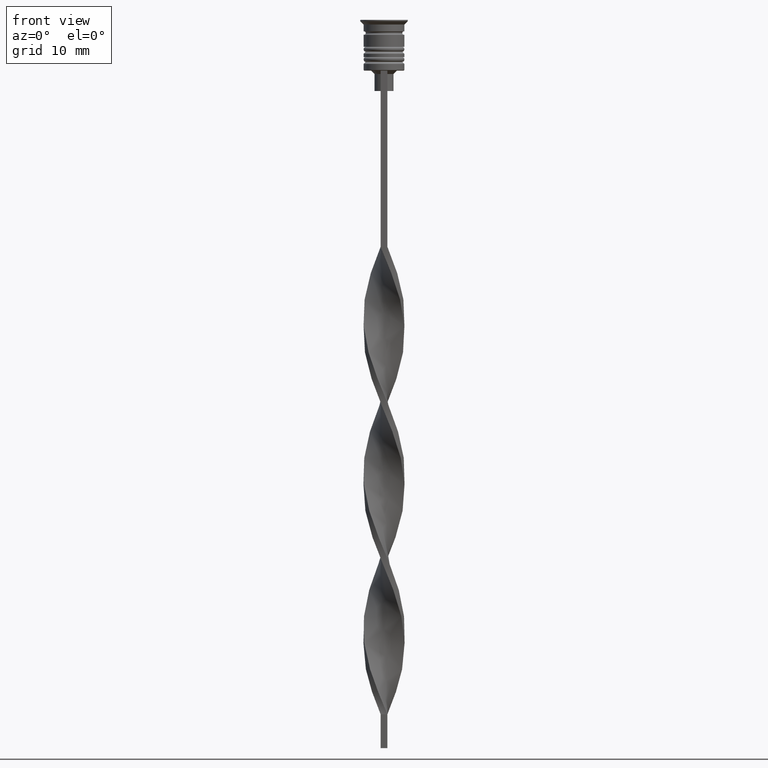
[diagram: clean part render]
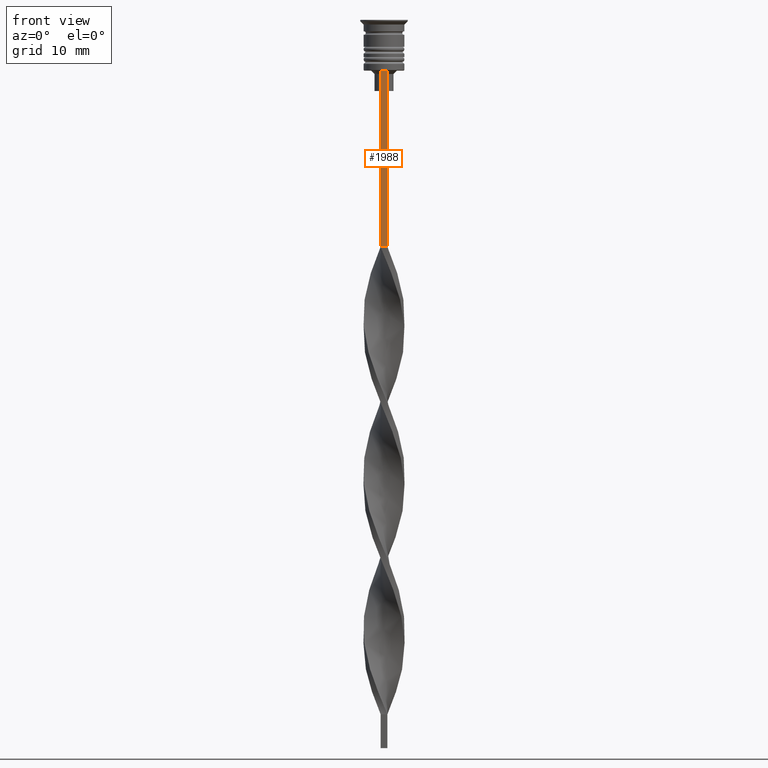
[diagram: same view with one face highlighted and labeled with its STEP entity id]
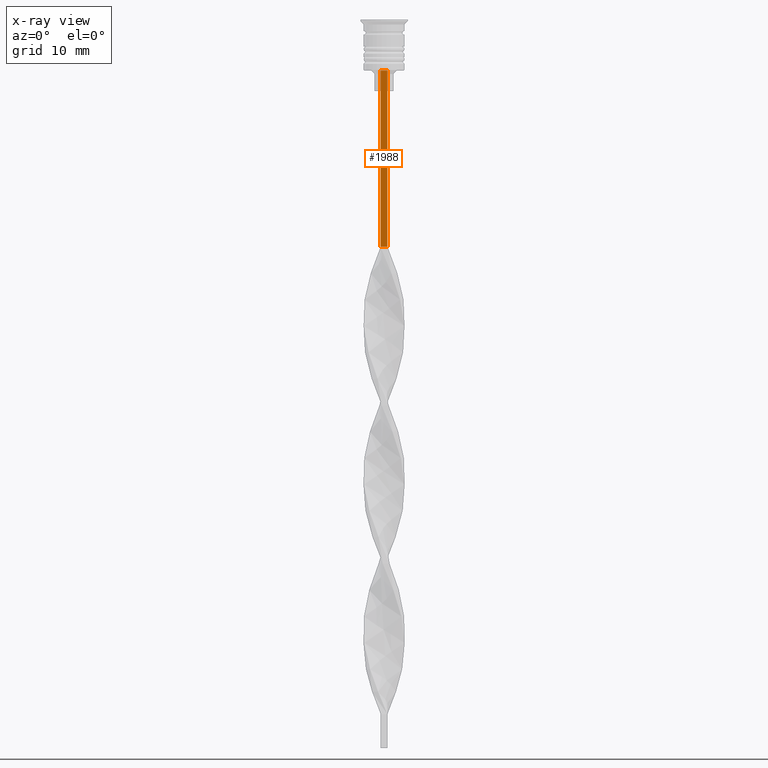
[diagram: x-ray of the same camera — body ghosted, the highlighted face saturated]
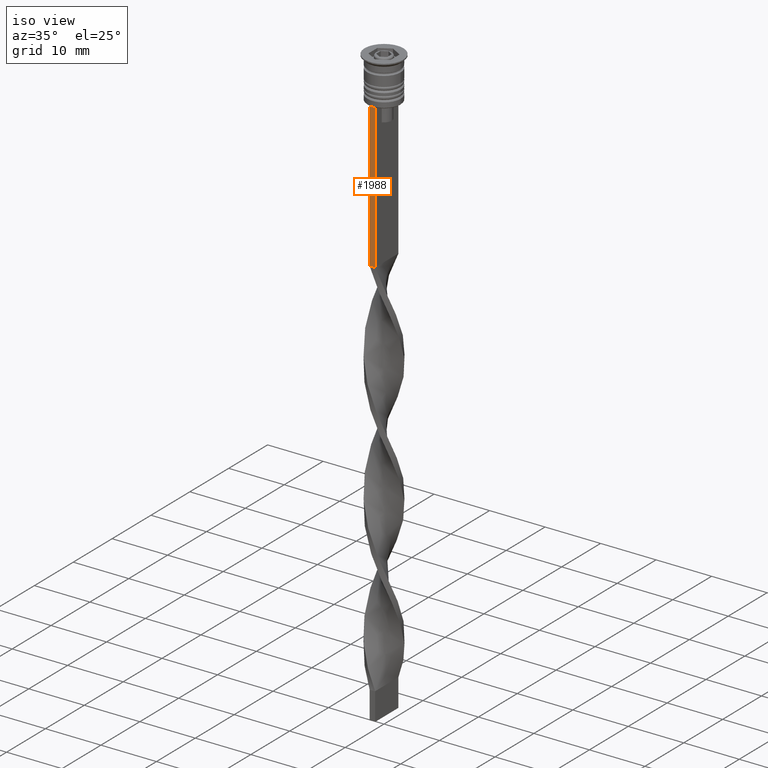
[diagram: same view with one face highlighted and labeled with its STEP entity id]
A machine part, front view. The second image highlights one B-rep face of the part: STEP entity #1988.
The next image is the same camera in x-ray: the body ghosted, the highlighted face saturated — about 0% of this face is hidden behind the body in this view.
A second angle (iso view) of the same face is appended — the face is thin or edge-on in the first view.
In plain terms, the highlighted planar face has unit normal (0, -1, -0).
Its self-contained STEP definition (entity closure, byte-faithful):
#79 = FACE_OUTER_BOUND ( 'NONE', #2841, .T. ) ;
#93 = CARTESIAN_POINT ( 'NONE',  ( 0.4999999999999998890, -3.000000000000000000, -1.417237469701779329 ) ) ;
#166 = CARTESIAN_POINT ( 'NONE',  ( -0.5000000000000001110, -3.000000000000000000, -1.417237469701779329 ) ) ;
#184 = LINE ( 'NONE', #166, #2619 ) ;
#446 = ORIENTED_EDGE ( 'NONE', *, *, #1250, .F. ) ;
#469 = EDGE_CURVE ( 'NONE', #1617, #3353, #2615, .T. ) ;
#532 = EDGE_CURVE ( 'NONE', #1637, #2826, #184, .T. ) ;
#697 = CARTESIAN_POINT ( 'NONE',  ( 0.4999999999999998890, -3.000000000000000000, -33.50000000000000000 ) ) ;
#722 = CARTESIAN_POINT ( 'NONE',  ( 0.4999999999999998890, -3.000000000000000000, -7.500000000000000000 ) ) ;
#763 = CARTESIAN_POINT ( 'NONE',  ( 0.4999999999999998890, -3.000000000000000000, -33.50000000000000000 ) ) ;
#775 = VECTOR ( 'NONE', #811, 1000.000000000000000 ) ;
#811 = DIRECTION ( 'NONE',  ( 1.000000000000000000, 0.000000000000000000, 0.000000000000000000 ) ) ;
#998 = DIRECTION ( 'NONE',  ( 0.000000000000000000, 0.000000000000000000, -1.000000000000000000 ) ) ;
#1227 = LINE ( 'NONE', #697, #2629 ) ;
#1250 = EDGE_CURVE ( 'NONE', #1637, #1617, #3235, .T. ) ;
#1391 = DIRECTION ( 'NONE',  ( 0.000000000000000000, -1.000000000000000000, -0.000000000000000000 ) ) ;
#1430 = PLANE ( 'NONE',  #1743 ) ;
#1617 = VERTEX_POINT ( 'NONE', #722 ) ;
#1637 = VERTEX_POINT ( 'NONE', #2886 ) ;
#1656 = CARTESIAN_POINT ( 'NONE',  ( 0.4999999999999998890, -3.000000000000000000, -7.500000000000000000 ) ) ;
#1743 = AXIS2_PLACEMENT_3D ( 'NONE', #93, #1391, #2428 ) ;
#1988 = ADVANCED_FACE ( 'NONE', ( #79 ), #1430, .T. ) ;
#2114 = EDGE_CURVE ( 'NONE', #3353, #2826, #1227, .T. ) ;
#2417 = ORIENTED_EDGE ( 'NONE', *, *, #2114, .F. ) ;
#2428 = DIRECTION ( 'NONE',  ( 0.000000000000000000, 0.000000000000000000, -1.000000000000000000 ) ) ;
#2452 = VECTOR ( 'NONE', #3354, 1000.000000000000000 ) ;
#2615 = LINE ( 'NONE', #2875, #2452 ) ;
#2619 = VECTOR ( 'NONE', #998, 1000.000000000000000 ) ;
#2629 = VECTOR ( 'NONE', #3040, 1000.000000000000000 ) ;
#2826 = VERTEX_POINT ( 'NONE', #3349 ) ;
#2841 = EDGE_LOOP ( 'NONE', ( #446, #3397, #2417, #3146 ) ) ;
#2875 = CARTESIAN_POINT ( 'NONE',  ( 0.4999999999999998890, -3.000000000000000000, -1.417237469701779329 ) ) ;
#2886 = CARTESIAN_POINT ( 'NONE',  ( -0.5000000000000001110, -3.000000000000000000, -7.500000000000000000 ) ) ;
#3040 = DIRECTION ( 'NONE',  ( -1.000000000000000000, 0.000000000000000000, 0.000000000000000000 ) ) ;
#3146 = ORIENTED_EDGE ( 'NONE', *, *, #469, .F. ) ;
#3235 = LINE ( 'NONE', #1656, #775 ) ;
#3349 = CARTESIAN_POINT ( 'NONE',  ( -0.5000000000000001110, -3.000000000000000000, -33.50000000000000000 ) ) ;
#3353 = VERTEX_POINT ( 'NONE', #763 ) ;
#3354 = DIRECTION ( 'NONE',  ( 0.000000000000000000, 0.000000000000000000, -1.000000000000000000 ) ) ;
#3397 = ORIENTED_EDGE ( 'NONE', *, *, #532, .T. ) ;